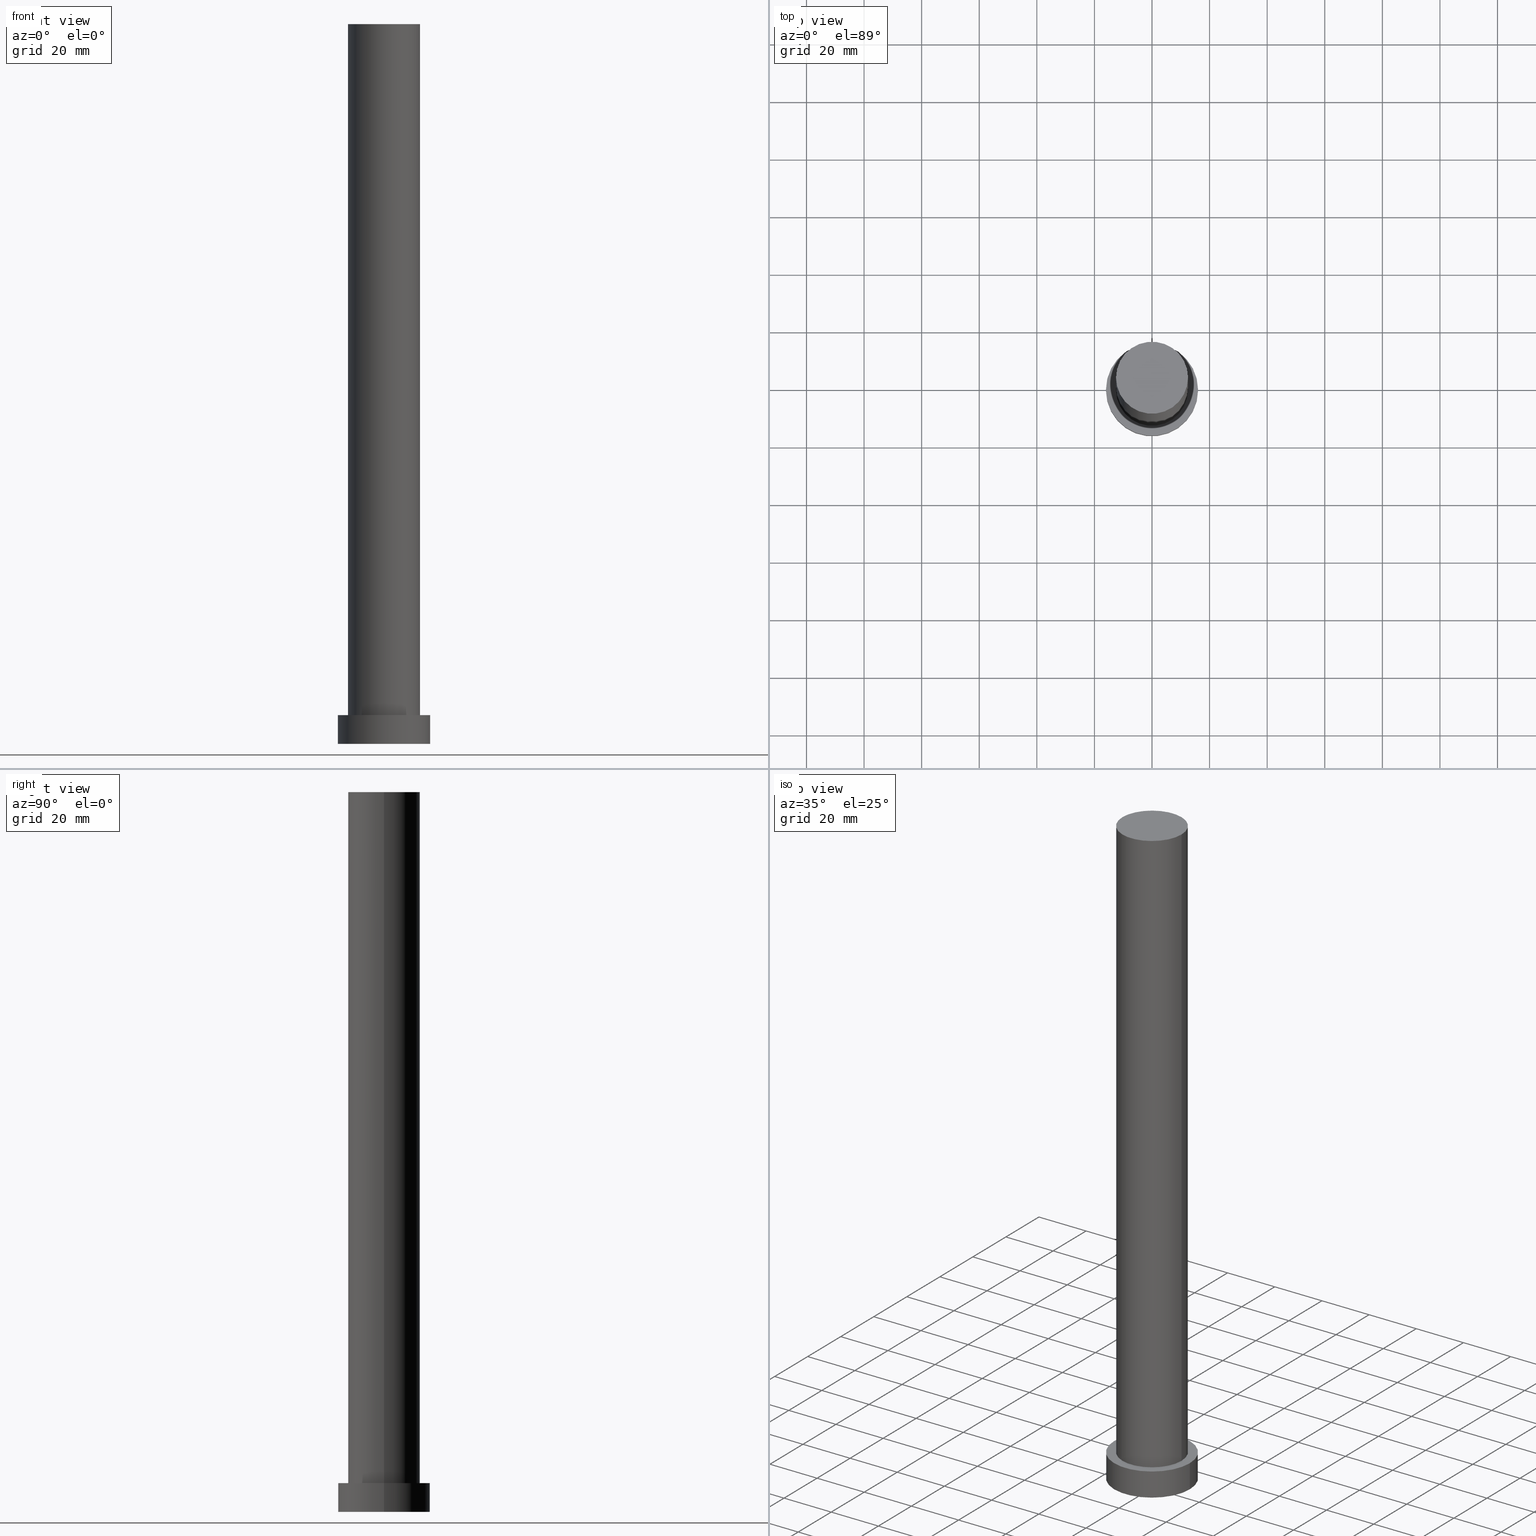
[diagram: canonical four-view strip — front | top / right | iso, engineering-drawing reading convention]
A machine part, canonical four-view strip (front | top / right | iso — engineering-drawing reading convention). The complete STEP part file that produces these views, byte-faithful:
ISO-10303-21;
HEADER;
FILE_DESCRIPTION (( 'STEP AP203' ),
    '1' );
FILE_NAME ('621b.STEP',
    '2023-02-13T07:51:58',
    ( '' ),
    ( '' ),
    'SwSTEP 2.0',
    'SolidWorks 2019',
    '' );
FILE_SCHEMA (( 'CONFIG_CONTROL_DESIGN' ));
ENDSEC;

DATA;
#1 = DIRECTION ( 'NONE',  ( -0.000000000000000000, -0.000000000000000000, -1.000000000000000000 ) ) ;
#2 = ORIENTED_EDGE ( 'NONE', *, *, #114, .T. ) ;
#3 = EDGE_LOOP ( 'NONE', ( #84, #94 ) ) ;
#4 = EDGE_LOOP ( 'NONE', ( #113, #38 ) ) ;
#5 = ORIENTED_EDGE ( 'NONE', *, *, #12, .T. ) ;
#6 = VERTEX_POINT ( 'NONE', #179 ) ;
#7 = CC_DESIGN_PERSON_AND_ORGANIZATION_ASSIGNMENT ( #125, #122, ( #16 ) ) ;
#8 = DIRECTION ( 'NONE',  ( -0.000000000000000000, -0.000000000000000000, -1.000000000000000000 ) ) ;
#9 = APPROVAL_PERSON_ORGANIZATION ( #184, #68, #11 ) ;
#10 = DIRECTION ( 'NONE',  ( 0.000000000000000000, 0.000000000000000000, 1.000000000000000000 ) ) ;
#11 = APPROVAL_ROLE ( '' ) ;
#12 = EDGE_CURVE ( 'NONE', #212, #110, #107, .T. ) ;
#13 = SECURITY_CLASSIFICATION_LEVEL ( 'unclassified' ) ;
#14 = DIRECTION ( 'NONE',  ( 1.000000000000000000, 0.000000000000000000, 0.000000000000000000 ) ) ;
#15 = DIRECTION ( 'NONE',  ( -1.000000000000000000, 0.000000000000000000, 0.000000000000000000 ) ) ;
#16 = SECURITY_CLASSIFICATION ( '', '', #13 ) ;
#17 = ADVANCED_FACE ( 'NONE', ( #26 ), #49, .T. ) ;
#18 = DIRECTION ( 'NONE',  ( -0.000000000000000000, -0.000000000000000000, -1.000000000000000000 ) ) ;
#19 = UNCERTAINTY_MEASURE_WITH_UNIT (LENGTH_MEASURE( 1.000000000000000082E-05 ), #69, 'distance_accuracy_value', 'NONE');
#20 = CC_DESIGN_PERSON_AND_ORGANIZATION_ASSIGNMENT ( #165, #156, ( #120 ) ) ;
#21 = ORIENTED_EDGE ( 'NONE', *, *, #99, .F. ) ;
#22 = VERTEX_POINT ( 'NONE', #104 ) ;
#23 = ORIENTED_EDGE ( 'NONE', *, *, #109, .T. ) ;
#24 = CIRCLE ( 'NONE', #88, 12.50000000000000000 ) ;
#25 = DIRECTION ( 'NONE',  ( -1.000000000000000000, 0.000000000000000000, 0.000000000000000000 ) ) ;
#26 = FACE_OUTER_BOUND ( 'NONE', #208, .T. ) ;
#27 = EDGE_CURVE ( 'NONE', #22, #6, #154, .T. ) ;
#28 = CYLINDRICAL_SURFACE ( 'NONE', #241, 12.50000000000000000 ) ;
#29 = PRODUCT_DEFINITION_FORMATION_WITH_SPECIFIED_SOURCE ( 'LIBOVOLN�', '', #120, .NOT_KNOWN. ) ;
#30 = APPROVAL_DATE_TIME ( #201, #68 ) ;
#31 = DIRECTION ( 'NONE',  ( -1.000000000000000000, 0.000000000000000000, 0.000000000000000000 ) ) ;
#32 = COORDINATED_UNIVERSAL_TIME_OFFSET ( 1, 0, .AHEAD. ) ;
#33 = AXIS2_PLACEMENT_3D ( 'NONE', #158, #174, #15 ) ;
#34 = PERSON_AND_ORGANIZATION ( #234, #180 ) ;
#35 = CC_DESIGN_PERSON_AND_ORGANIZATION_ASSIGNMENT ( #53, #51, ( #29 ) ) ;
#36 = FACE_OUTER_BOUND ( 'NONE', #95, .T. ) ;
#37 = DIRECTION ( 'NONE',  ( 1.000000000000000000, 0.000000000000000000, 0.000000000000000000 ) ) ;
#38 = ORIENTED_EDGE ( 'NONE', *, *, #27, .T. ) ;
#39 = CARTESIAN_POINT ( 'NONE',  ( 12.50000000000000000, 1.530808498934191521E-15, 250.0000000000000000 ) ) ;
#40 = DIRECTION ( 'NONE',  ( 0.000000000000000000, 0.000000000000000000, 1.000000000000000000 ) ) ;
#41 = ORIENTED_EDGE ( 'NONE', *, *, #250, .T. ) ;
#42 = PERSON_AND_ORGANIZATION ( #234, #180 ) ;
#43 = EDGE_LOOP ( 'NONE', ( #97, #5 ) ) ;
#44 =( NAMED_UNIT ( * ) SI_UNIT ( $, .STERADIAN. ) SOLID_ANGLE_UNIT ( ) );
#45 = CARTESIAN_POINT ( 'NONE',  ( 12.50000000000000000, 1.530808498934191521E-15, 250.0000000000000000 ) ) ;
#46 = VECTOR ( 'NONE', #181, 1000.000000000000000 ) ;
#47 = APPROVAL ( #147, 'NEUR�EN�' ) ;
#48 = APPLICATION_PROTOCOL_DEFINITION ( 'international standard', 'config_control_design', 1994, #244 ) ;
#49 = CYLINDRICAL_SURFACE ( 'NONE', #98, 12.50000000000000000 ) ;
#50 = CARTESIAN_POINT ( 'NONE',  ( 0.000000000000000000, 0.000000000000000000, 250.0000000000000000 ) ) ;
#51 = PERSON_AND_ORGANIZATION_ROLE ( 'design_supplier' ) ;
#52 = CALENDAR_DATE ( 2023, 13, 2 ) ;
#53 = PERSON_AND_ORGANIZATION ( #234, #180 ) ;
#54 = AXIS2_PLACEMENT_3D ( 'NONE', #173, #91, #155 ) ;
#55 = AXIS2_PLACEMENT_3D ( 'NONE', #93, #176, #80 ) ;
#56 = CALENDAR_DATE ( 2023, 13, 2 ) ;
#57 = EDGE_LOOP ( 'NONE', ( #172, #134, #209, #221 ) ) ;
#58 = LINE ( 'NONE', #255, #141 ) ;
#59 = CLOSED_SHELL ( 'NONE', ( #17, #148, #168, #161, #126, #219, #253 ) ) ;
#60 = DIRECTION ( 'NONE',  ( 1.000000000000000000, 0.000000000000000000, 0.000000000000000000 ) ) ;
#61 = ORIENTED_EDGE ( 'NONE', *, *, #191, .T. ) ;
#62 = LOCAL_TIME ( 8, 51, 58.00000000000000000, #72 ) ;
#63 = EDGE_LOOP ( 'NONE', ( #177, #132 ) ) ;
#64 = EDGE_CURVE ( 'NONE', #195, #240, #249, .T. ) ;
#65 = CARTESIAN_POINT ( 'NONE',  ( 0.000000000000000000, 0.000000000000000000, 250.0000000000000000 ) ) ;
#66 = DIRECTION ( 'NONE',  ( 0.000000000000000000, 0.000000000000000000, 1.000000000000000000 ) ) ;
#67 = CC_DESIGN_APPROVAL ( #47, ( #29 ) ) ;
#68 = APPROVAL ( #130, 'NEUR�EN�' ) ;
#69 =( LENGTH_UNIT ( ) NAMED_UNIT ( * ) SI_UNIT ( .MILLI., .METRE. ) );
#70 = DATE_TIME_ROLE ( 'creation_date' ) ;
#71 = CIRCLE ( 'NONE', #143, 12.50000000000000000 ) ;
#72 = COORDINATED_UNIVERSAL_TIME_OFFSET ( 1, 0, .AHEAD. ) ;
#73 = COORDINATED_UNIVERSAL_TIME_OFFSET ( 1, 0, .AHEAD. ) ;
#74 = CC_DESIGN_PERSON_AND_ORGANIZATION_ASSIGNMENT ( #124, #246, ( #29 ) ) ;
#75 = CARTESIAN_POINT ( 'NONE',  ( 12.50000000000000000, 1.530808498934191521E-15, 10.00000000000000000 ) ) ;
#76 = FACE_OUTER_BOUND ( 'NONE', #3, .T. ) ;
#77 = FACE_BOUND ( 'NONE', #63, .T. ) ;
#78 = CARTESIAN_POINT ( 'NONE',  ( 0.000000000000000000, 0.000000000000000000, 250.0000000000000000 ) ) ;
#79 = DESIGN_CONTEXT ( 'detailed design', #151, 'design' ) ;
#80 = DIRECTION ( 'NONE',  ( 1.000000000000000000, 0.000000000000000000, -0.000000000000000000 ) ) ;
#81 = CC_DESIGN_DATE_AND_TIME_ASSIGNMENT ( #226, #70, ( #169 ) ) ;
#82 = EDGE_CURVE ( 'NONE', #110, #212, #24, .T. ) ;
#83 = CARTESIAN_POINT ( 'NONE',  ( 0.000000000000000000, 0.000000000000000000, 250.0000000000000000 ) ) ;
#84 = ORIENTED_EDGE ( 'NONE', *, *, #64, .F. ) ;
#85 = CARTESIAN_POINT ( 'NONE',  ( 16.00000000000000000, 1.959434878635765131E-15, 10.00000000000000000 ) ) ;
#86 = LOCAL_TIME ( 8, 51, 58.00000000000000000, #105 ) ;
#87 = DIRECTION ( 'NONE',  ( 1.000000000000000000, 0.000000000000000000, 0.000000000000000000 ) ) ;
#88 = AXIS2_PLACEMENT_3D ( 'NONE', #78, #131, #211 ) ;
#89 = DATE_AND_TIME ( #56, #103 ) ;
#90 = LOCAL_TIME ( 8, 51, 58.00000000000000000, #247 ) ;
#91 = DIRECTION ( 'NONE',  ( 0.000000000000000000, 0.000000000000000000, 1.000000000000000000 ) ) ;
#92 = DIRECTION ( 'NONE',  ( 0.000000000000000000, 0.000000000000000000, 1.000000000000000000 ) ) ;
#93 = CARTESIAN_POINT ( 'NONE',  ( 0.000000000000000000, 0.000000000000000000, 10.00000000000000000 ) ) ;
#94 = ORIENTED_EDGE ( 'NONE', *, *, #109, .F. ) ;
#95 = EDGE_LOOP ( 'NONE', ( #190, #178, #23, #21 ) ) ;
#96 = DIRECTION ( 'NONE',  ( 1.000000000000000000, 0.000000000000000000, -0.000000000000000000 ) ) ;
#97 = ORIENTED_EDGE ( 'NONE', *, *, #82, .T. ) ;
#98 = AXIS2_PLACEMENT_3D ( 'NONE', #50, #203, #31 ) ;
#99 = EDGE_CURVE ( 'NONE', #6, #195, #58, .T. ) ;
#100 = DIRECTION ( 'NONE',  ( 0.000000000000000000, 0.000000000000000000, 1.000000000000000000 ) ) ;
#101 = CARTESIAN_POINT ( 'NONE',  ( -12.50000000000000000, 0.000000000000000000, 250.0000000000000000 ) ) ;
#102 =( NAMED_UNIT ( * ) PLANE_ANGLE_UNIT ( ) SI_UNIT ( $, .RADIAN. ) );
#103 = LOCAL_TIME ( 8, 51, 58.00000000000000000, #32 ) ;
#104 = CARTESIAN_POINT ( 'NONE',  ( 16.00000000000000000, 1.959434878635765131E-15, 10.00000000000000000 ) ) ;
#105 = COORDINATED_UNIVERSAL_TIME_OFFSET ( 1, 0, .AHEAD. ) ;
#106 = PERSON_AND_ORGANIZATION_ROLE ( 'creator' ) ;
#107 = CIRCLE ( 'NONE', #232, 12.50000000000000000 ) ;
#108 = CARTESIAN_POINT ( 'NONE',  ( 0.000000000000000000, 0.000000000000000000, 10.00000000000000000 ) ) ;
#109 = EDGE_CURVE ( 'NONE', #240, #195, #150, .T. ) ;
#110 = VERTEX_POINT ( 'NONE', #189 ) ;
#111 = DIRECTION ( 'NONE',  ( 1.000000000000000000, 0.000000000000000000, 0.000000000000000000 ) ) ;
#112 = PLANE ( 'NONE',  #54 ) ;
#113 = ORIENTED_EDGE ( 'NONE', *, *, #135, .T. ) ;
#114 = EDGE_CURVE ( 'NONE', #237, #140, #200, .T. ) ;
#115 = APPROVAL_STATUS ( 'not_yet_approved' ) ;
#116 = ORIENTED_EDGE ( 'NONE', *, *, #12, .F. ) ;
#117 = FACE_OUTER_BOUND ( 'NONE', #43, .T. ) ;
#118 = LINE ( 'NONE', #85, #46 ) ;
#119 = MECHANICAL_CONTEXT ( 'NONE', #244, 'mechanical' ) ;
#120 = PRODUCT ( '621b', '621b', '', ( #119 ) ) ;
#121 = APPROVAL ( #115, 'NEUR�EN�' ) ;
#122 = PERSON_AND_ORGANIZATION_ROLE ( 'classification_officer' ) ;
#123 = APPROVAL_PERSON_ORGANIZATION ( #127, #47, #225 ) ;
#124 = PERSON_AND_ORGANIZATION ( #234, #180 ) ;
#125 = PERSON_AND_ORGANIZATION ( #234, #180 ) ;
#126 = ADVANCED_FACE ( 'NONE', ( #76 ), #112, .F. ) ;
#127 = PERSON_AND_ORGANIZATION ( #234, #180 ) ;
#128 = ADVANCED_BREP_SHAPE_REPRESENTATION ( '621b', ( #185, #138 ), #197 ) ;
#129 = AXIS2_PLACEMENT_3D ( 'NONE', #236, #40, #37 ) ;
#130 = APPROVAL_STATUS ( 'not_yet_approved' ) ;
#131 = DIRECTION ( 'NONE',  ( 0.000000000000000000, 0.000000000000000000, 1.000000000000000000 ) ) ;
#132 = ORIENTED_EDGE ( 'NONE', *, *, #250, .F. ) ;
#133 = APPROVAL_PERSON_ORGANIZATION ( #42, #121, #196 ) ;
#134 = ORIENTED_EDGE ( 'NONE', *, *, #135, .F. ) ;
#135 = EDGE_CURVE ( 'NONE', #6, #22, #192, .T. ) ;
#136 = FACE_OUTER_BOUND ( 'NONE', #57, .T. ) ;
#137 = CARTESIAN_POINT ( 'NONE',  ( 16.00000000000000000, 1.959434878635765131E-15, 0.000000000000000000 ) ) ;
#138 = AXIS2_PLACEMENT_3D ( 'NONE', #182, #66, #60 ) ;
#139 = ORIENTED_EDGE ( 'NONE', *, *, #191, .F. ) ;
#140 = VERTEX_POINT ( 'NONE', #75 ) ;
#141 = VECTOR ( 'NONE', #18, 1000.000000000000000 ) ;
#142 = DIRECTION ( 'NONE',  ( 1.000000000000000000, 0.000000000000000000, 0.000000000000000000 ) ) ;
#143 = AXIS2_PLACEMENT_3D ( 'NONE', #239, #144, #142 ) ;
#144 = DIRECTION ( 'NONE',  ( 0.000000000000000000, 0.000000000000000000, 1.000000000000000000 ) ) ;
#145 = CALENDAR_DATE ( 2023, 13, 2 ) ;
#146 = AXIS2_PLACEMENT_3D ( 'NONE', #183, #10, #87 ) ;
#147 = APPROVAL_STATUS ( 'not_yet_approved' ) ;
#148 = ADVANCED_FACE ( 'NONE', ( #36 ), #171, .T. ) ;
#149 = APPROVAL_DATE_TIME ( #227, #121 ) ;
#150 = CIRCLE ( 'NONE', #129, 16.00000000000000000 ) ;
#151 = APPLICATION_CONTEXT ( 'configuration controlled 3d designs of mechanical parts and assemblies' ) ;
#152 = DIRECTION ( 'NONE',  ( 0.000000000000000000, 0.000000000000000000, 1.000000000000000000 ) ) ;
#153 = DIRECTION ( 'NONE',  ( -1.000000000000000000, 0.000000000000000000, 0.000000000000000000 ) ) ;
#154 = CIRCLE ( 'NONE', #146, 16.00000000000000000 ) ;
#155 = DIRECTION ( 'NONE',  ( 1.000000000000000000, 0.000000000000000000, -0.000000000000000000 ) ) ;
#156 = PERSON_AND_ORGANIZATION_ROLE ( 'design_owner' ) ;
#157 = AXIS2_PLACEMENT_3D ( 'NONE', #248, #100, #111 ) ;
#158 = CARTESIAN_POINT ( 'NONE',  ( 0.000000000000000000, 0.000000000000000000, 10.00000000000000000 ) ) ;
#159 = DIRECTION ( 'NONE',  ( -0.000000000000000000, -0.000000000000000000, -1.000000000000000000 ) ) ;
#160 = DIRECTION ( 'NONE',  ( 0.000000000000000000, 0.000000000000000000, 1.000000000000000000 ) ) ;
#161 = ADVANCED_FACE ( 'NONE', ( #77, #231 ), #233, .T. ) ;
#162 = FACE_OUTER_BOUND ( 'NONE', #229, .T. ) ;
#163 = AXIS2_PLACEMENT_3D ( 'NONE', #213, #92, #14 ) ;
#164 = CC_DESIGN_PERSON_AND_ORGANIZATION_ASSIGNMENT ( #34, #106, ( #169 ) ) ;
#165 = PERSON_AND_ORGANIZATION ( #234, #180 ) ;
#166 = PRODUCT_DEFINITION_SHAPE ( 'NONE', 'NONE',  #169 ) ;
#167 = CC_DESIGN_APPROVAL ( #121, ( #169 ) ) ;
#168 = ADVANCED_FACE ( 'NONE', ( #136 ), #218, .T. ) ;
#169 = PRODUCT_DEFINITION ( 'NEZN�M�', '', #29, #79 ) ;
#170 = LOCAL_TIME ( 8, 51, 58.00000000000000000, #73 ) ;
#171 = CYLINDRICAL_SURFACE ( 'NONE', #193, 16.00000000000000000 ) ;
#172 = ORIENTED_EDGE ( 'NONE', *, *, #214, .F. ) ;
#173 = CARTESIAN_POINT ( 'NONE',  ( 0.000000000000000000, 0.000000000000000000, 0.000000000000000000 ) ) ;
#174 = DIRECTION ( 'NONE',  ( -0.000000000000000000, -0.000000000000000000, -1.000000000000000000 ) ) ;
#175 = CC_DESIGN_APPROVAL ( #68, ( #16 ) ) ;
#176 = DIRECTION ( 'NONE',  ( 0.000000000000000000, 0.000000000000000000, 1.000000000000000000 ) ) ;
#177 = ORIENTED_EDGE ( 'NONE', *, *, #114, .F. ) ;
#178 = ORIENTED_EDGE ( 'NONE', *, *, #214, .T. ) ;
#179 = CARTESIAN_POINT ( 'NONE',  ( -16.00000000000000000, 0.000000000000000000, 10.00000000000000000 ) ) ;
#180 = ORGANIZATION ( 'NEUR�EN�', 'NEUR�EN�', '' ) ;
#181 = DIRECTION ( 'NONE',  ( -0.000000000000000000, -0.000000000000000000, -1.000000000000000000 ) ) ;
#182 = CARTESIAN_POINT ( 'NONE',  ( 0.000000000000000000, 0.000000000000000000, 0.000000000000000000 ) ) ;
#183 = CARTESIAN_POINT ( 'NONE',  ( 0.000000000000000000, 0.000000000000000000, 10.00000000000000000 ) ) ;
#184 = PERSON_AND_ORGANIZATION ( #234, #180 ) ;
#185 = MANIFOLD_SOLID_BREP ( 'P�idat vysunut�m3', #59 ) ;
#186 = CALENDAR_DATE ( 2023, 13, 2 ) ;
#187 = DATE_AND_TIME ( #52, #86 ) ;
#188 = VECTOR ( 'NONE', #159, 1000.000000000000000 ) ;
#189 = CARTESIAN_POINT ( 'NONE',  ( -12.50000000000000000, 0.000000000000000000, 250.0000000000000000 ) ) ;
#190 = ORIENTED_EDGE ( 'NONE', *, *, #27, .F. ) ;
#191 = EDGE_CURVE ( 'NONE', #212, #140, #216, .T. ) ;
#192 = CIRCLE ( 'NONE', #238, 16.00000000000000000 ) ;
#193 = AXIS2_PLACEMENT_3D ( 'NONE', #108, #1, #153 ) ;
#194 = VECTOR ( 'NONE', #235, 1000.000000000000000 ) ;
#195 = VERTEX_POINT ( 'NONE', #199 ) ;
#196 = APPROVAL_ROLE ( '' ) ;
#197 =( GEOMETRIC_REPRESENTATION_CONTEXT ( 3 ) GLOBAL_UNCERTAINTY_ASSIGNED_CONTEXT ( ( #19 ) ) GLOBAL_UNIT_ASSIGNED_CONTEXT ( ( #69, #102, #44 ) ) REPRESENTATION_CONTEXT ( 'NONE', 'WORKASPACE' ) );
#198 = LINE ( 'NONE', #101, #188 ) ;
#199 = CARTESIAN_POINT ( 'NONE',  ( -16.00000000000000000, 0.000000000000000000, 0.000000000000000000 ) ) ;
#200 = CIRCLE ( 'NONE', #163, 12.50000000000000000 ) ;
#201 = DATE_AND_TIME ( #145, #62 ) ;
#202 = AXIS2_PLACEMENT_3D ( 'NONE', #245, #222, #96 ) ;
#203 = DIRECTION ( 'NONE',  ( -0.000000000000000000, -0.000000000000000000, -1.000000000000000000 ) ) ;
#204 = APPROVAL_DATE_TIME ( #187, #47 ) ;
#205 = SHAPE_DEFINITION_REPRESENTATION ( #166, #128 ) ;
#206 = CC_DESIGN_SECURITY_CLASSIFICATION ( #16, ( #29 ) ) ;
#207 = EDGE_CURVE ( 'NONE', #110, #237, #198, .T. ) ;
#208 = EDGE_LOOP ( 'NONE', ( #116, #61, #41, #230 ) ) ;
#209 = ORIENTED_EDGE ( 'NONE', *, *, #99, .T. ) ;
#210 = PRODUCT_RELATED_PRODUCT_CATEGORY ( 'detail', '', ( #120 ) ) ;
#211 = DIRECTION ( 'NONE',  ( 1.000000000000000000, 0.000000000000000000, 0.000000000000000000 ) ) ;
#212 = VERTEX_POINT ( 'NONE', #45 ) ;
#213 = CARTESIAN_POINT ( 'NONE',  ( 0.000000000000000000, 0.000000000000000000, 10.00000000000000000 ) ) ;
#214 = EDGE_CURVE ( 'NONE', #22, #240, #118, .T. ) ;
#215 = ORIENTED_EDGE ( 'NONE', *, *, #207, .T. ) ;
#216 = LINE ( 'NONE', #39, #194 ) ;
#217 = ORIENTED_EDGE ( 'NONE', *, *, #82, .F. ) ;
#218 = CYLINDRICAL_SURFACE ( 'NONE', #33, 16.00000000000000000 ) ;
#219 = ADVANCED_FACE ( 'NONE', ( #162 ), #28, .T. ) ;
#220 = APPLICATION_PROTOCOL_DEFINITION ( 'international standard', 'config_control_design', 1994, #151 ) ;
#221 = ORIENTED_EDGE ( 'NONE', *, *, #64, .T. ) ;
#222 = DIRECTION ( 'NONE',  ( 0.000000000000000000, 0.000000000000000000, 1.000000000000000000 ) ) ;
#223 = PLANE ( 'NONE',  #202 ) ;
#224 = DATE_TIME_ROLE ( 'classification_date' ) ;
#225 = APPROVAL_ROLE ( '' ) ;
#226 = DATE_AND_TIME ( #251, #170 ) ;
#227 = DATE_AND_TIME ( #186, #90 ) ;
#228 = CARTESIAN_POINT ( 'NONE',  ( 0.000000000000000000, 0.000000000000000000, 10.00000000000000000 ) ) ;
#229 = EDGE_LOOP ( 'NONE', ( #139, #217, #215, #2 ) ) ;
#230 = ORIENTED_EDGE ( 'NONE', *, *, #207, .F. ) ;
#231 = FACE_OUTER_BOUND ( 'NONE', #4, .T. ) ;
#232 = AXIS2_PLACEMENT_3D ( 'NONE', #83, #160, #243 ) ;
#233 = PLANE ( 'NONE',  #55 ) ;
#234 = PERSON ( 'NEUR�EN�', 'NEUR�EN�', 'NEUR�EN�', ('NEUR�EN�'), ('NEUR�EN�'), ('NEUR�EN�') ) ;
#235 = DIRECTION ( 'NONE',  ( -0.000000000000000000, -0.000000000000000000, -1.000000000000000000 ) ) ;
#236 = CARTESIAN_POINT ( 'NONE',  ( 0.000000000000000000, 0.000000000000000000, 0.000000000000000000 ) ) ;
#237 = VERTEX_POINT ( 'NONE', #242 ) ;
#238 = AXIS2_PLACEMENT_3D ( 'NONE', #228, #152, #254 ) ;
#239 = CARTESIAN_POINT ( 'NONE',  ( 0.000000000000000000, 0.000000000000000000, 10.00000000000000000 ) ) ;
#240 = VERTEX_POINT ( 'NONE', #137 ) ;
#241 = AXIS2_PLACEMENT_3D ( 'NONE', #65, #8, #25 ) ;
#242 = CARTESIAN_POINT ( 'NONE',  ( -12.50000000000000000, 0.000000000000000000, 10.00000000000000000 ) ) ;
#243 = DIRECTION ( 'NONE',  ( 1.000000000000000000, 0.000000000000000000, 0.000000000000000000 ) ) ;
#244 = APPLICATION_CONTEXT ( 'configuration controlled 3d designs of mechanical parts and assemblies' ) ;
#245 = CARTESIAN_POINT ( 'NONE',  ( 0.000000000000000000, 0.000000000000000000, 250.0000000000000000 ) ) ;
#246 = PERSON_AND_ORGANIZATION_ROLE ( 'creator' ) ;
#247 = COORDINATED_UNIVERSAL_TIME_OFFSET ( 1, 0, .AHEAD. ) ;
#248 = CARTESIAN_POINT ( 'NONE',  ( 0.000000000000000000, 0.000000000000000000, 0.000000000000000000 ) ) ;
#249 = CIRCLE ( 'NONE', #157, 16.00000000000000000 ) ;
#250 = EDGE_CURVE ( 'NONE', #140, #237, #71, .T. ) ;
#251 = CALENDAR_DATE ( 2023, 13, 2 ) ;
#252 = CC_DESIGN_DATE_AND_TIME_ASSIGNMENT ( #89, #224, ( #16 ) ) ;
#253 = ADVANCED_FACE ( 'NONE', ( #117 ), #223, .T. ) ;
#254 = DIRECTION ( 'NONE',  ( 1.000000000000000000, 0.000000000000000000, 0.000000000000000000 ) ) ;
#255 = CARTESIAN_POINT ( 'NONE',  ( -16.00000000000000000, 0.000000000000000000, 10.00000000000000000 ) ) ;
ENDSEC;
END-ISO-10303-21;
